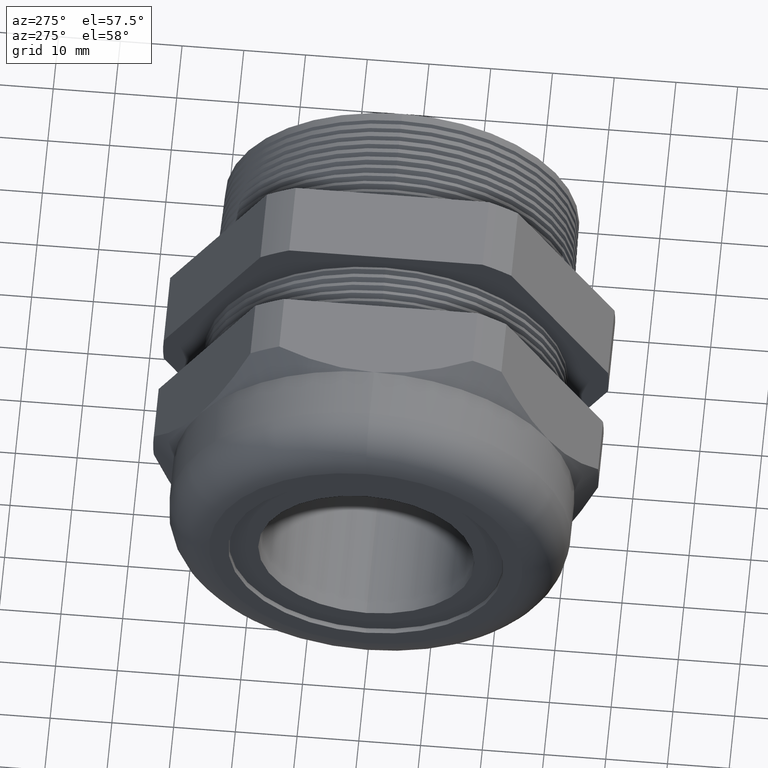
[diagram: clean part render]
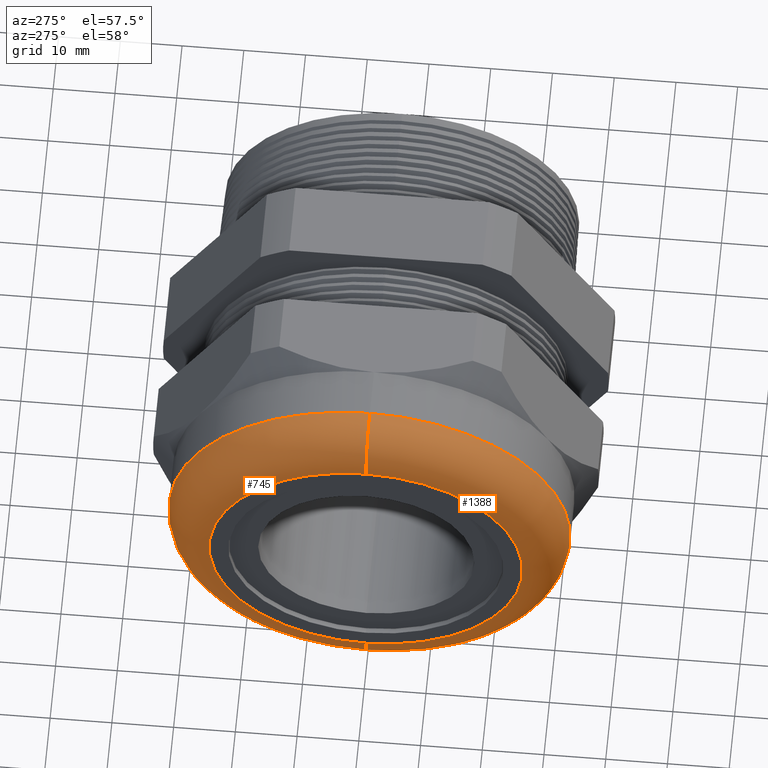
[diagram: same view with one multi-face feature highlighted, each face labeled with its STEP entity id]
A machine part, auxiliary view. The highlighted faces form ONE feature: a constant-radius fillet chain: 2 tangent blend faces with common blend radius 7.112 mm. The faces share edges in the B-rep.
Their STEP definitions:
[1] entity #745 (Torus):
#738 = EDGE_CURVE ( 'NONE', #743, #744, #2988, .T. ) ;
#739 = ORIENTED_EDGE ( 'NONE', *, *, #740, .F. ) ;
#740 = EDGE_CURVE ( 'NONE', #747, #743, #2983, .T. ) ;
#742 = ORIENTED_EDGE ( 'NONE', *, *, #738, .F. ) ;
#743 = VERTEX_POINT ( 'NONE', #2972 ) ;
#744 = VERTEX_POINT ( 'NONE', #2971 ) ;
#745 = ADVANCED_FACE ( 'NONE', ( #2970 ), #2968, .T. ) ;
#746 = EDGE_LOOP ( 'NONE', ( #748, #751, #742, #739 ) ) ;
#747 = VERTEX_POINT ( 'NONE', #3030 ) ;
#748 = ORIENTED_EDGE ( 'NONE', *, *, #750, .F. ) ;
#749 = VERTEX_POINT ( 'NONE', #3026 ) ;
#750 = EDGE_CURVE ( 'NONE', #749, #747, #3025, .T. ) ;
#751 = ORIENTED_EDGE ( 'NONE', *, *, #752, .T. ) ;
#752 = EDGE_CURVE ( 'NONE', #749, #744, #3020, .T. ) ;
#2968 = TOROIDAL_SURFACE ( 'NONE', #3029, 1.000000000000000000, 0.2800000000000000300 ) ;
#2969 = CARTESIAN_POINT ( 'NONE',  ( -1.959999999999999500, 0.0000000000000000000, 0.0000000000000000000 ) ) ;
#2970 = FACE_OUTER_BOUND ( 'NONE', #746, .T. ) ;
#2971 = CARTESIAN_POINT ( 'NONE',  ( -2.239999999999999800, 1.396097351027982800E-016, -1.000000000000000000 ) ) ;
#2972 = CARTESIAN_POINT ( 'NONE',  ( -2.239999999999999800, 0.0000000000000000000, 1.000000000000000000 ) ) ;
#2979 = DIRECTION ( 'NONE',  ( 0.0000000000000000000, 0.0000000000000000000, -1.000000000000000000 ) ) ;
#2980 = DIRECTION ( 'NONE',  ( 0.0000000000000000000, -1.000000000000000000, 0.0000000000000000000 ) ) ;
#2981 = CARTESIAN_POINT ( 'NONE',  ( -1.959999999999999500, 0.0000000000000000000, 1.000000000000000000 ) ) ;
#2982 = AXIS2_PLACEMENT_3D ( 'NONE', #2981, #2980, #2979 ) ;
#2983 = CIRCLE ( 'NONE', #2982, 0.2800000000000000300 ) ;
#2984 = DIRECTION ( 'NONE',  ( 0.0000000000000000000, 0.0000000000000000000, 1.000000000000000000 ) ) ;
#2985 = DIRECTION ( 'NONE',  ( -1.000000000000000000, 0.0000000000000000000, 0.0000000000000000000 ) ) ;
#2986 = CARTESIAN_POINT ( 'NONE',  ( -2.239999999999999800, 0.0000000000000000000, 0.0000000000000000000 ) ) ;
#2987 = AXIS2_PLACEMENT_3D ( 'NONE', #2986, #2985, #2984 ) ;
#2988 = CIRCLE ( 'NONE', #2987, 1.000000000000000000 ) ;
#3016 = DIRECTION ( 'NONE',  ( 0.0000000000000000000, -1.224646799147353000E-016, 1.000000000000000000 ) ) ;
#3017 = DIRECTION ( 'NONE',  ( 0.0000000000000000000, 1.000000000000000000, 1.224646799147353200E-016 ) ) ;
#3018 = CARTESIAN_POINT ( 'NONE',  ( -1.959999999999999500, 1.224646799147353200E-016, -1.000000000000000000 ) ) ;
#3019 = AXIS2_PLACEMENT_3D ( 'NONE', #3018, #3017, #3016 ) ;
#3020 = CIRCLE ( 'NONE', #3019, 0.2800000000000000300 ) ;
#3021 = DIRECTION ( 'NONE',  ( 0.0000000000000000000, 0.0000000000000000000, 1.000000000000000000 ) ) ;
#3022 = DIRECTION ( 'NONE',  ( 1.000000000000000000, 0.0000000000000000000, 0.0000000000000000000 ) ) ;
#3023 = CARTESIAN_POINT ( 'NONE',  ( -1.959999999999999500, 0.0000000000000000000, 0.0000000000000000000 ) ) ;
#3024 = AXIS2_PLACEMENT_3D ( 'NONE', #3023, #3022, #3021 ) ;
#3025 = CIRCLE ( 'NONE', #3024, 1.280000000000000000 ) ;
#3026 = CARTESIAN_POINT ( 'NONE',  ( -1.959999999999999500, 0.0000000000000000000, -1.280000000000000000 ) ) ;
#3027 = DIRECTION ( 'NONE',  ( 0.0000000000000000000, 0.0000000000000000000, 1.000000000000000000 ) ) ;
#3028 = DIRECTION ( 'NONE',  ( -1.000000000000000000, 0.0000000000000000000, 0.0000000000000000000 ) ) ;
#3029 = AXIS2_PLACEMENT_3D ( 'NONE', #2969, #3028, #3027 ) ;
#3030 = CARTESIAN_POINT ( 'NONE',  ( -1.959999999999999500, 1.567547902908612300E-016, 1.280000000000000000 ) ) ;
[2] entity #1388 (Torus):
#413 = EDGE_CURVE ( 'NONE', #744, #743, #2359, .T. ) ;
#472 = EDGE_CURVE ( 'NONE', #747, #749, #2403, .T. ) ;
#740 = EDGE_CURVE ( 'NONE', #747, #743, #2983, .T. ) ;
#743 = VERTEX_POINT ( 'NONE', #2972 ) ;
#744 = VERTEX_POINT ( 'NONE', #2971 ) ;
#747 = VERTEX_POINT ( 'NONE', #3030 ) ;
#749 = VERTEX_POINT ( 'NONE', #3026 ) ;
#752 = EDGE_CURVE ( 'NONE', #749, #744, #3020, .T. ) ;
#1388 = ADVANCED_FACE ( 'NONE', ( #4070 ), #4069, .T. ) ;
#1389 = EDGE_LOOP ( 'NONE', ( #1390, #1391, #1392, #1393 ) ) ;
#1390 = ORIENTED_EDGE ( 'NONE', *, *, #752, .F. ) ;
#1391 = ORIENTED_EDGE ( 'NONE', *, *, #472, .F. ) ;
#1392 = ORIENTED_EDGE ( 'NONE', *, *, #740, .T. ) ;
#1393 = ORIENTED_EDGE ( 'NONE', *, *, #413, .F. ) ;
#2355 = DIRECTION ( 'NONE',  ( 0.0000000000000000000, 0.0000000000000000000, 1.000000000000000000 ) ) ;
#2356 = DIRECTION ( 'NONE',  ( -1.000000000000000000, 0.0000000000000000000, 0.0000000000000000000 ) ) ;
#2357 = CARTESIAN_POINT ( 'NONE',  ( -2.239999999999999800, 0.0000000000000000000, 0.0000000000000000000 ) ) ;
#2358 = AXIS2_PLACEMENT_3D ( 'NONE', #2357, #2356, #2355 ) ;
#2359 = CIRCLE ( 'NONE', #2358, 1.000000000000000000 ) ;
#2403 = CIRCLE ( 'NONE', #2461, 1.280000000000000000 ) ;
#2458 = DIRECTION ( 'NONE',  ( 0.0000000000000000000, 0.0000000000000000000, 1.000000000000000000 ) ) ;
#2459 = DIRECTION ( 'NONE',  ( 1.000000000000000000, 0.0000000000000000000, 0.0000000000000000000 ) ) ;
#2460 = CARTESIAN_POINT ( 'NONE',  ( -1.959999999999999500, 0.0000000000000000000, 0.0000000000000000000 ) ) ;
#2461 = AXIS2_PLACEMENT_3D ( 'NONE', #2460, #2459, #2458 ) ;
#2971 = CARTESIAN_POINT ( 'NONE',  ( -2.239999999999999800, 1.396097351027982800E-016, -1.000000000000000000 ) ) ;
#2972 = CARTESIAN_POINT ( 'NONE',  ( -2.239999999999999800, 0.0000000000000000000, 1.000000000000000000 ) ) ;
#2979 = DIRECTION ( 'NONE',  ( 0.0000000000000000000, 0.0000000000000000000, -1.000000000000000000 ) ) ;
#2980 = DIRECTION ( 'NONE',  ( 0.0000000000000000000, -1.000000000000000000, 0.0000000000000000000 ) ) ;
#2981 = CARTESIAN_POINT ( 'NONE',  ( -1.959999999999999500, 0.0000000000000000000, 1.000000000000000000 ) ) ;
#2982 = AXIS2_PLACEMENT_3D ( 'NONE', #2981, #2980, #2979 ) ;
#2983 = CIRCLE ( 'NONE', #2982, 0.2800000000000000300 ) ;
#3016 = DIRECTION ( 'NONE',  ( 0.0000000000000000000, -1.224646799147353000E-016, 1.000000000000000000 ) ) ;
#3017 = DIRECTION ( 'NONE',  ( 0.0000000000000000000, 1.000000000000000000, 1.224646799147353200E-016 ) ) ;
#3018 = CARTESIAN_POINT ( 'NONE',  ( -1.959999999999999500, 1.224646799147353200E-016, -1.000000000000000000 ) ) ;
#3019 = AXIS2_PLACEMENT_3D ( 'NONE', #3018, #3017, #3016 ) ;
#3020 = CIRCLE ( 'NONE', #3019, 0.2800000000000000300 ) ;
#3026 = CARTESIAN_POINT ( 'NONE',  ( -1.959999999999999500, 0.0000000000000000000, -1.280000000000000000 ) ) ;
#3030 = CARTESIAN_POINT ( 'NONE',  ( -1.959999999999999500, 1.567547902908612300E-016, 1.280000000000000000 ) ) ;
#4066 = DIRECTION ( 'NONE',  ( 0.0000000000000000000, 0.0000000000000000000, 1.000000000000000000 ) ) ;
#4067 = DIRECTION ( 'NONE',  ( -1.000000000000000000, 0.0000000000000000000, 0.0000000000000000000 ) ) ;
#4068 = AXIS2_PLACEMENT_3D ( 'NONE', #4074, #4067, #4066 ) ;
#4069 = TOROIDAL_SURFACE ( 'NONE', #4068, 1.000000000000000000, 0.2800000000000000300 ) ;
#4070 = FACE_OUTER_BOUND ( 'NONE', #1389, .T. ) ;
#4074 = CARTESIAN_POINT ( 'NONE',  ( -1.959999999999999500, 0.0000000000000000000, 0.0000000000000000000 ) ) ;